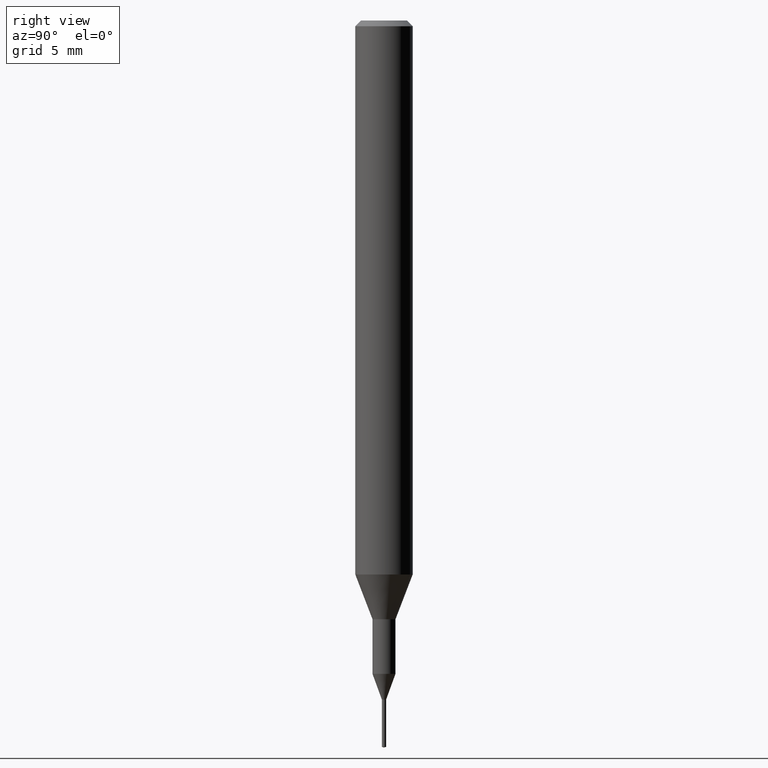
[diagram: clean part render]
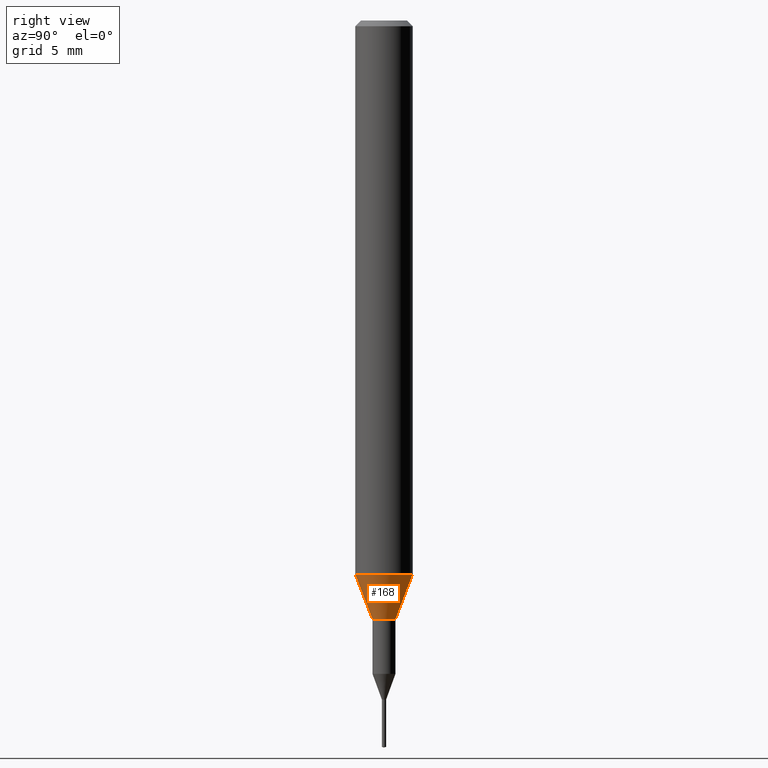
[diagram: same view with one face highlighted and labeled with its STEP entity id]
A machine part, right view. The second image highlights one B-rep face of the part: STEP entity #168.
In plain terms, the highlighted conical surface has half-angle 20.997 deg.
Its self-contained STEP definition (entity closure, byte-faithful):
#144=VERTEX_POINT('',#324);
#150=VERTEX_POINT('',#330);
#168=ADVANCED_FACE('',(#352),#353,.T.);
#174=EDGE_CURVE('',#234,#150,#360,.T.);
#176=VERTEX_POINT('',#362);
#178=EDGE_CURVE('',#176,#150,#364,.T.);
#184=EDGE_CURVE('',#234,#144,#371,.T.);
#214=EDGE_CURVE('',#144,#176,#404,.T.);
#234=VERTEX_POINT('',#427);
#324=CARTESIAN_POINT('',(0.0,0.6,-31.3));
#330=CARTESIAN_POINT('',(1.83690953073357E-016,-1.5,-28.955));
#352=FACE_OUTER_BOUND('',#556,.T.);
#353=CONICAL_SURFACE('',#557,1.05,0.366459241971866);
#360=CIRCLE('',#565,1.5);
#362=CARTESIAN_POINT('',(7.34763812293426E-017,-0.6,-31.3));
#364=LINE('',#570,#571);
#371=LINE('',#581,#582);
#404=CIRCLE('',#627,0.6);
#427=CARTESIAN_POINT('',(0.0,1.5,-28.955));
#556=EDGE_LOOP('',(#794,#795,#796,#797));
#557=AXIS2_PLACEMENT_3D('',#798,#799,#800);
#565=AXIS2_PLACEMENT_3D('',#809,#810,#811);
#570=CARTESIAN_POINT('',(1.2858366715135E-016,-1.05,-30.1275));
#571=VECTOR('',#812,1.0);
#581=CARTESIAN_POINT('',(-1.2858366715135E-016,1.05,-30.1275));
#582=VECTOR('',#821,1.0);
#627=AXIS2_PLACEMENT_3D('',#851,#852,#853);
#794=ORIENTED_EDGE('',*,*,#184,.F.);
#795=ORIENTED_EDGE('',*,*,#174,.T.);
#796=ORIENTED_EDGE('',*,*,#178,.F.);
#797=ORIENTED_EDGE('',*,*,#214,.F.);
#798=CARTESIAN_POINT('',(0.0,0.0,-30.1275));
#799=DIRECTION('',(-0.0,-0.0,1.0));
#800=DIRECTION('',(0.0,1.0,0.0));
#809=CARTESIAN_POINT('',(0.0,0.0,-28.955));
#810=DIRECTION('',(0.0,0.0,-1.0));
#811=DIRECTION('',(0.0,1.0,0.0));
#812=DIRECTION('',(4.38791184365088E-017,-0.358312026550805,0.93360189140182));
#821=DIRECTION('',(4.38791184365088E-017,-0.358312026550805,-0.93360189140182));
#851=CARTESIAN_POINT('',(0.0,0.0,-31.3));
#852=DIRECTION('',(0.0,0.0,-1.0));
#853=DIRECTION('',(0.0,1.0,0.0));